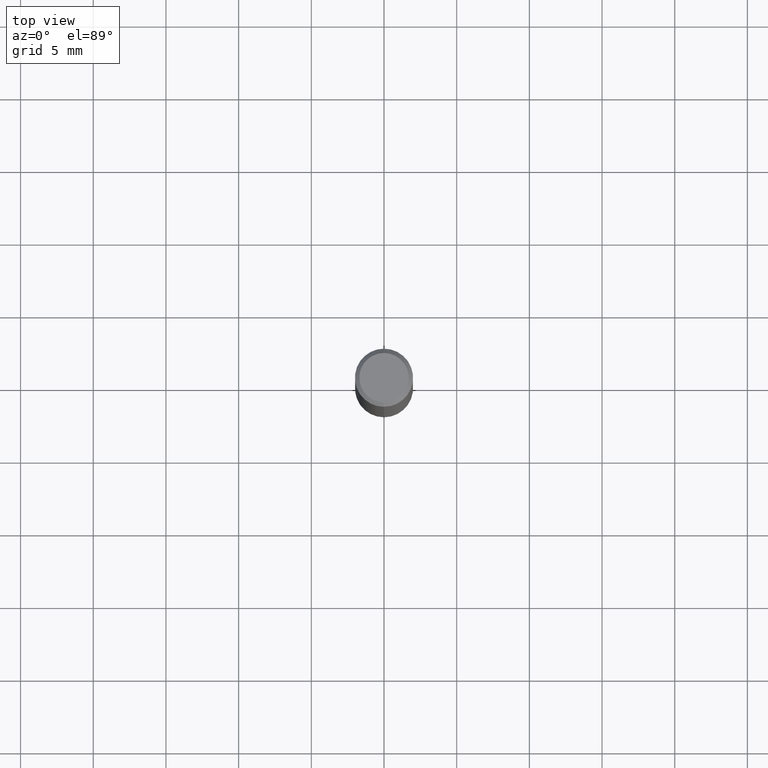
[diagram: clean part render]
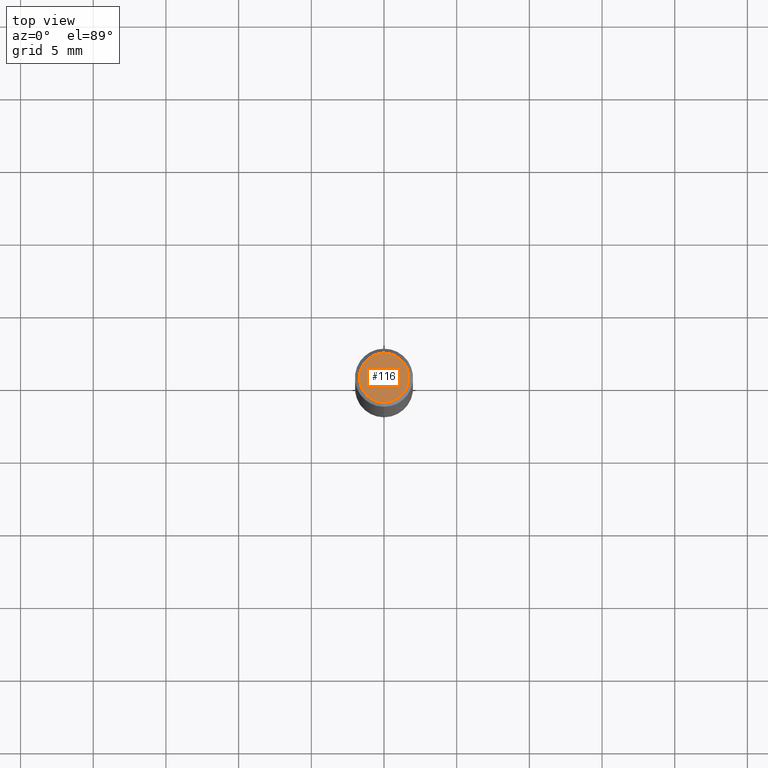
[diagram: same view with one face highlighted and labeled with its STEP entity id]
A machine part, top view. The second image highlights one B-rep face of the part: STEP entity #116.
In plain terms, the highlighted planar face has unit normal (-0, 0, 1).
Its self-contained STEP definition (entity closure, byte-faithful):
#112=VERTEX_POINT('',#267);
#116=ADVANCED_FACE('',(#271),#272,.T.);
#118=EDGE_CURVE('',#230,#112,#274,.T.);
#140=EDGE_CURVE('',#112,#230,#298,.T.);
#230=VERTEX_POINT('',#400);
#267=CARTESIAN_POINT('',(2.08183080149804E-016,-1.7,0.0));
#271=FACE_OUTER_BOUND('',#442,.T.);
#272=PLANE('',#443);
#274=CIRCLE('',#446,1.7);
#298=CIRCLE('',#479,1.7);
#400=CARTESIAN_POINT('',(0.0,1.7,0.0));
#442=EDGE_LOOP('',(#629,#630));
#443=AXIS2_PLACEMENT_3D('',#631,#632,#633);
#446=AXIS2_PLACEMENT_3D('',#634,#635,#636);
#479=AXIS2_PLACEMENT_3D('',#667,#668,#669);
#629=ORIENTED_EDGE('',*,*,#118,.F.);
#630=ORIENTED_EDGE('',*,*,#140,.F.);
#631=CARTESIAN_POINT('',(0.0,0.85,0.0));
#632=DIRECTION('',(-0.0,0.0,1.0));
#633=DIRECTION('',(0.0,-1.0,0.0));
#634=CARTESIAN_POINT('',(0.0,0.0,0.0));
#635=DIRECTION('',(0.0,0.0,-1.0));
#636=DIRECTION('',(0.0,1.0,0.0));
#667=CARTESIAN_POINT('',(0.0,0.0,0.0));
#668=DIRECTION('',(0.0,0.0,-1.0));
#669=DIRECTION('',(0.0,1.0,0.0));